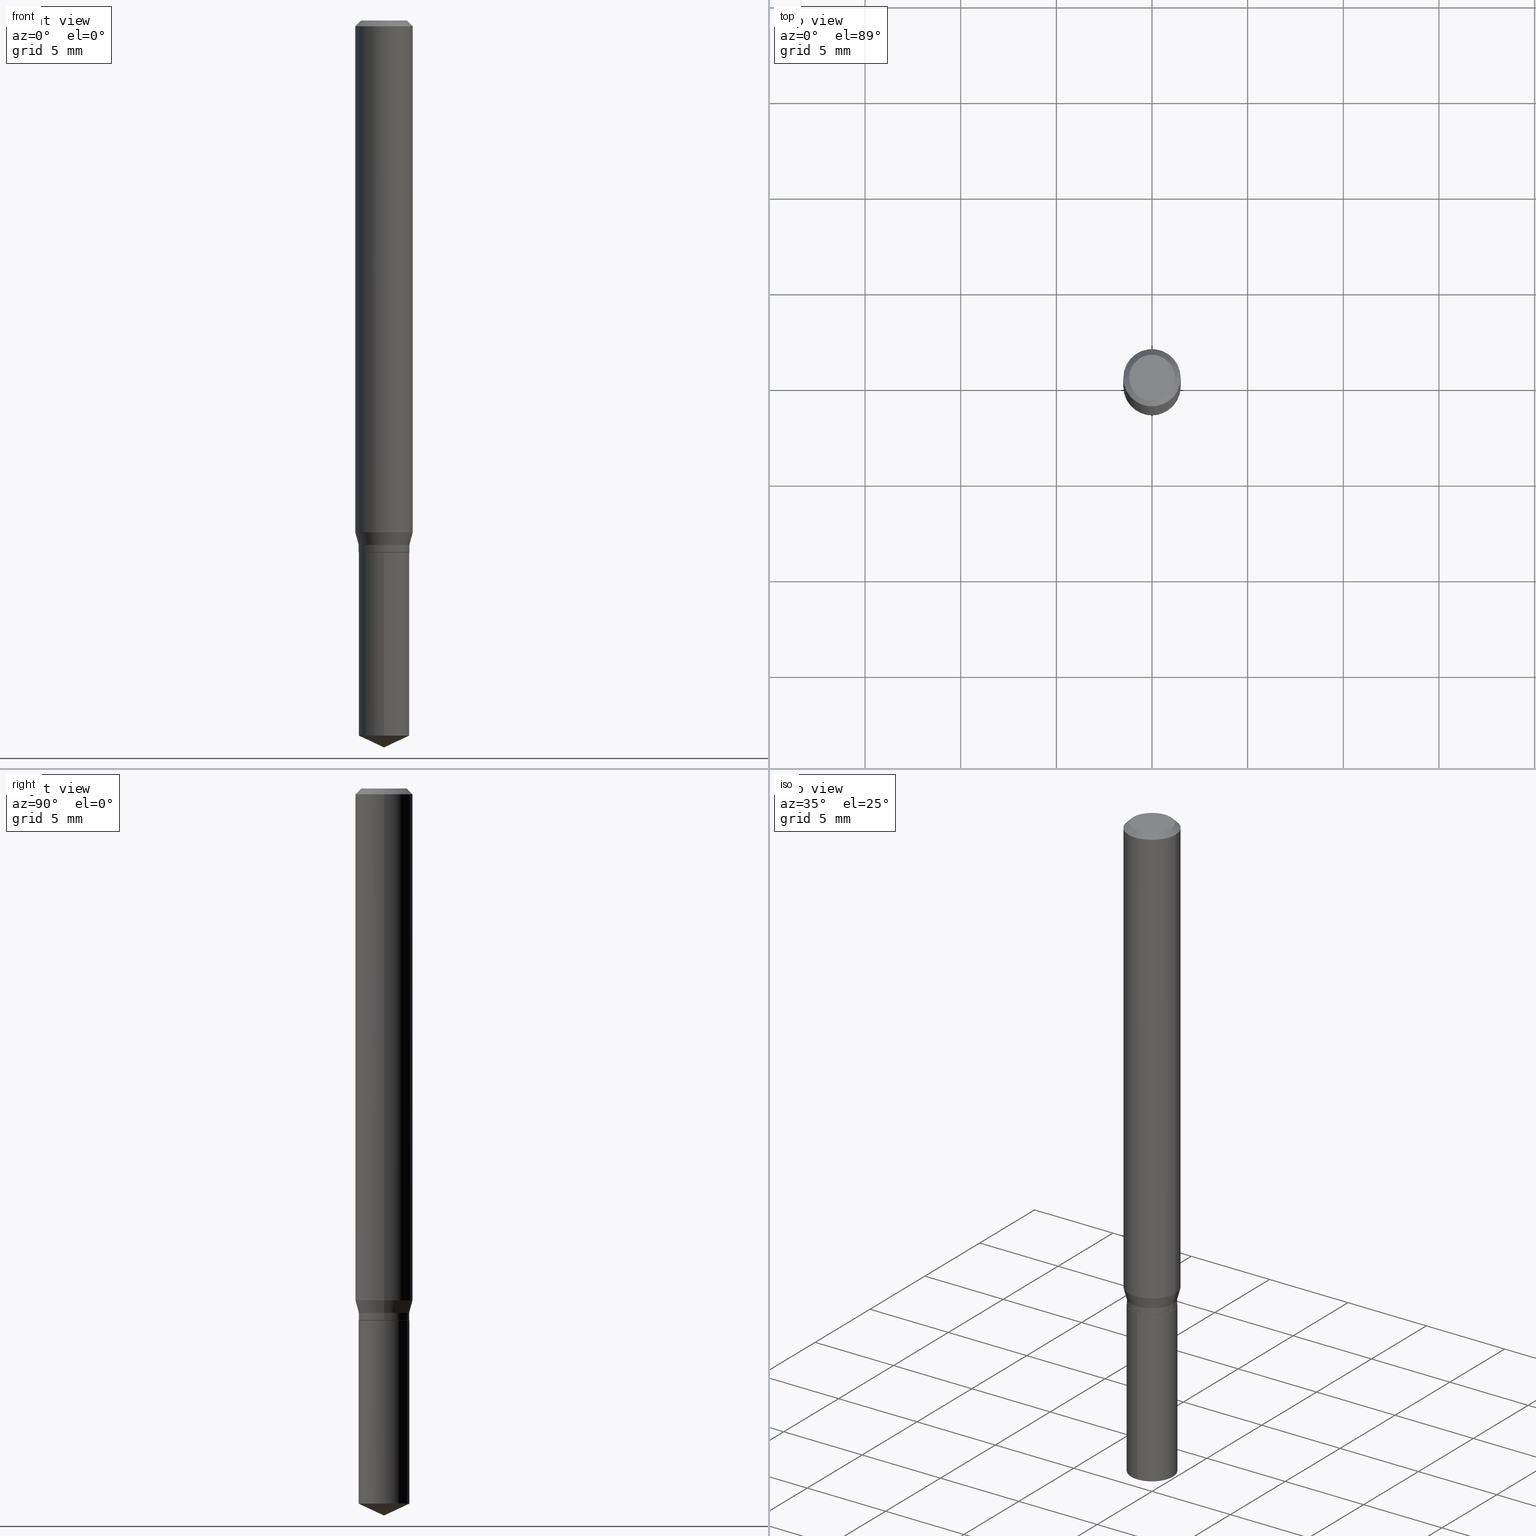
[diagram: canonical four-view strip — front | top / right | iso, engineering-drawing reading convention]
A machine part, canonical four-view strip (front | top / right | iso — engineering-drawing reading convention). The complete STEP part file that produces these views, byte-faithful:
ISO-10303-21;
HEADER;
FILE_DESCRIPTION (( 'STEP AP203' ),
    '1' );
FILE_NAME ('07678.STEP',
    '2024-04-24T00:53:07',
    ( '' ),
    ( '' ),
    'SwSTEP 2.0',
    'SolidWorks 2023',
    '' );
FILE_SCHEMA (( 'CONFIG_CONTROL_DESIGN' ));
ENDSEC;

DATA;
#1 = ORIENTED_EDGE ( 'NONE', *, *, #398, .F. ) ;
#2 = CLOSED_SHELL ( 'NONE', ( #417, #115, #282, #451, #312 ) ) ;
#3 = CARTESIAN_POINT ( 'NONE',  ( -0.05215000000000000191, -3.422771863887242530E-15, -1.093999999999999861 ) ) ;
#4 = ORIENTED_EDGE ( 'NONE', *, *, #23, .T. ) ;
#5 = VERTEX_POINT ( 'NONE', #52 ) ;
#6 = DIRECTION ( 'NONE',  ( -2.445458899330790108E-29, 3.491495526022433599E-15, 1.000000000000000000 ) ) ;
#7 = FACE_OUTER_BOUND ( 'NONE', #307, .T. ) ;
#8 = VERTEX_POINT ( 'NONE', #232 ) ;
#9 = DIRECTION ( 'NONE',  ( 1.000000000000000000, -6.982962677686265133E-15, 0.000000000000000000 ) ) ;
#10 = ORIENTED_EDGE ( 'NONE', *, *, #487, .T. ) ;
#11 = CARTESIAN_POINT ( 'NONE',  ( 2.675342873966538993E-29, -3.819680584694400481E-15, -1.093999999999999861 ) ) ;
#12 = APPROVAL ( #31, 'UNSPECIFIED' ) ;
#13 = EDGE_CURVE ( 'NONE', #5, #98, #94, .T. ) ;
#14 = DIRECTION ( 'NONE',  ( -2.445458899330790108E-29, 3.491495526022433205E-15, 1.000000000000000000 ) ) ;
#15 = AXIS2_PLACEMENT_3D ( 'NONE', #269, #86, #219 ) ;
#16 = CIRCLE ( 'NONE', #448, 0.04724000000000000421 ) ;
#17 = CARTESIAN_POINT ( 'NONE',  ( 2.888098660104664204E-31, -4.123439461173780263E-17, -0.01181000000000007218 ) ) ;
#18 = ORIENTED_EDGE ( 'NONE', *, *, #41, .T. ) ;
#19 = CARTESIAN_POINT ( 'NONE',  ( -0.05215000000000000191, -3.422771863887242530E-15, -1.078899999999999970 ) ) ;
#20 = ORIENTED_EDGE ( 'NONE', *, *, #23, .F. ) ;
#21 = CYLINDRICAL_SURFACE ( 'NONE', #473, 0.05905000000000006771 ) ;
#22 = CARTESIAN_POINT ( 'NONE',  ( 2.676565608369632355E-29, -3.821426325363822773E-15, -1.094500000000000028 ) ) ;
#23 = EDGE_CURVE ( 'NONE', #167, #478, #242, .T. ) ;
#24 = ORIENTED_EDGE ( 'NONE', *, *, #157, .F. ) ;
#25 = CARTESIAN_POINT ( 'NONE',  ( 0.05215000000000000191, -4.131120720119208550E-15, -1.078899999999999970 ) ) ;
#26 = AXIS2_PLACEMENT_3D ( 'NONE', #22, #422, #234 ) ;
#27 = VECTOR ( 'NONE', #113, 39.37007874015748143 ) ;
#28 = APPROVAL_ROLE ( '' ) ;
#29 = DIRECTION ( 'NONE',  ( -2.445468806185136597E-29, 3.491481338843145583E-15, 1.000000000000000000 ) ) ;
#30 = ORIENTED_EDGE ( 'NONE', *, *, #92, .T. ) ;
#31 = APPROVAL_STATUS ( 'not_yet_approved' ) ;
#32 = EDGE_LOOP ( 'NONE', ( #424, #137, #160, #164 ) ) ;
#33 = CALENDAR_DATE ( 2024, 23, 4 ) ;
#34 = AXIS2_PLACEMENT_3D ( 'NONE', #275, #47, #348 ) ;
#35 = LOCAL_TIME ( 20, 53, 7.000000000000000000, #79 ) ;
#36 = PERSON_AND_ORGANIZATION ( #263, #218 ) ;
#37 = EDGE_CURVE ( 'NONE', #162, #98, #377, .T. ) ;
#38 = VECTOR ( 'NONE', #244, 39.37007874015748143 ) ;
#39 = VECTOR ( 'NONE', #371, 39.37007874015748143 ) ;
#40 = DIRECTION ( 'NONE',  ( -2.445468806185136597E-29, 3.491481338843145583E-15, 1.000000000000000000 ) ) ;
#41 = EDGE_CURVE ( 'NONE', #345, #270, #55, .T. ) ;
#42 = LINE ( 'NONE', #337, #39 ) ;
#43 = ORIENTED_EDGE ( 'NONE', *, *, #301, .T. ) ;
#44 = VERTEX_POINT ( 'NONE', #449 ) ;
#45 = AXIS2_PLACEMENT_3D ( 'NONE', #319, #166, #436 ) ;
#46 = CARTESIAN_POINT ( 'NONE',  ( 2.676565608369631794E-29, -3.821426325363822773E-15, -1.094499999999999806 ) ) ;
#47 = DIRECTION ( 'NONE',  ( -2.445468806185136597E-29, 3.491481338843145583E-15, 1.000000000000000000 ) ) ;
#48 = DIRECTION ( 'NONE',  ( -0.7071067811864267805, 7.493145998869918709E-15, 0.7071067811866682540 ) ) ;
#49 = CARTESIAN_POINT ( 'NONE',  ( 0.05215000000000000191, -4.183842088335739536E-15, -1.093999999999999861 ) ) ;
#50 = ORIENTED_EDGE ( 'NONE', *, *, #70, .F. ) ;
#51 = ADVANCED_FACE ( 'NONE', ( #452 ), #408, .T. ) ;
#52 = CARTESIAN_POINT ( 'NONE',  ( -0.05164999999999999453, -3.451781775169620013E-15, -1.094500000000000028 ) ) ;
#53 = CARTESIAN_POINT ( 'NONE',  ( 3.658651059288794515E-29, -5.223626456482161457E-15, -1.496099999999999985 ) ) ;
#54 = FACE_OUTER_BOUND ( 'NONE', #389, .T. ) ;
#55 = LINE ( 'NONE', #204, #442 ) ;
#56 = AXIS2_PLACEMENT_3D ( 'NONE', #198, #136, #99 ) ;
#57 = CC_DESIGN_APPROVAL ( #397, ( #373 ) ) ;
#58 = CARTESIAN_POINT ( 'NONE',  ( 3.705480366989281044E-16, 0.05214999999999483937, -1.471782055627217201 ) ) ;
#59 = ORIENTED_EDGE ( 'NONE', *, *, #147, .F. ) ;
#60 = LINE ( 'NONE', #355, #443 ) ;
#61 = CARTESIAN_POINT ( 'NONE',  ( 3.599193368861023933E-29, -5.138704934634797986E-15, -1.471782055627216979 ) ) ;
#62 = ORIENTED_EDGE ( 'NONE', *, *, #77, .F. ) ;
#63 =( LENGTH_UNIT ( ) NAMED_UNIT ( * ) SI_UNIT ( $, .METRE. ) );
#64 = DIRECTION ( 'NONE',  ( -6.982962677686267499E-15, -1.000000000000000000, 3.520397390770433360E-15 ) ) ;
#65 = CARTESIAN_POINT ( 'NONE',  ( -3.641615036413027182E-16, -0.05215000000000512281, -1.471782055627216756 ) ) ;
#66 = AXIS2_PLACEMENT_3D ( 'NONE', #265, #455, #272 ) ;
#67 =( GEOMETRIC_REPRESENTATION_CONTEXT ( 3 ) GLOBAL_UNCERTAINTY_ASSIGNED_CONTEXT ( ( #103 ) ) GLOBAL_UNIT_ASSIGNED_CONTEXT ( ( #186, #73, #146 ) ) REPRESENTATION_CONTEXT ( 'NONE', 'WORKASPACE' ) );
#68 = DIRECTION ( 'NONE',  ( 2.438088387897960049E-29, -3.491481338843145188E-15, -1.000000000000000000 ) ) ;
#69 = DIRECTION ( 'NONE',  ( 6.982962677686265922E-15, 1.000000000000000000, -3.491495526022433599E-15 ) ) ;
#70 = EDGE_CURVE ( 'NONE', #98, #162, #485, .T. ) ;
#71 = DATE_AND_TIME ( #327, #155 ) ;
#72 = CYLINDRICAL_SURFACE ( 'NONE', #251, 0.05215000000000000191 ) ;
#73 =( NAMED_UNIT ( * ) PLANE_ANGLE_UNIT ( ) SI_UNIT ( $, .RADIAN. ) );
#74 = CARTESIAN_POINT ( 'NONE',  ( 8.265746106709734507E-48, -1.180129479067563789E-33, -3.380025165646692144E-19 ) ) ;
#75 = AXIS2_PLACEMENT_3D ( 'NONE', #11, #240, #302 ) ;
#76 = CC_DESIGN_PERSON_AND_ORGANIZATION_ASSIGNMENT ( #326, #476, ( #482 ) ) ;
#77 = EDGE_CURVE ( 'NONE', #5, #453, #372, .T. ) ;
#78 = PERSON_AND_ORGANIZATION ( #263, #218 ) ;
#79 = COORDINATED_UNIVERSAL_TIME_OFFSET ( 5, 0, .BEHIND. ) ;
#80 = DIRECTION ( 'NONE',  ( 1.000000000000000000, -6.982962677686268288E-15, 0.000000000000000000 ) ) ;
#81 = AXIS2_PLACEMENT_3D ( 'NONE', #354, #433, #310 ) ;
#82 = VECTOR ( 'NONE', #353, 39.37007874015747433 ) ;
#83 = ORIENTED_EDGE ( 'NONE', *, *, #474, .T. ) ;
#84 = ORIENTED_EDGE ( 'NONE', *, *, #467, .T. ) ;
#85 = PERSON_AND_ORGANIZATION ( #263, #218 ) ;
#86 = DIRECTION ( 'NONE',  ( -2.445468806185136597E-29, 3.491481338843145583E-15, 1.000000000000000000 ) ) ;
#87 = ORIENTED_EDGE ( 'NONE', *, *, #256, .T. ) ;
#88 = DIRECTION ( 'NONE',  ( -2.445458899330790108E-29, 3.491495526022433205E-15, 1.000000000000000000 ) ) ;
#89 = ORIENTED_EDGE ( 'NONE', *, *, #487, .F. ) ;
#90 = CIRCLE ( 'NONE', #387, 0.05215000000000000191 ) ;
#91 = CARTESIAN_POINT ( 'NONE',  ( -0.05904999999999999832, -1.439566489240130405E-15, -0.01181000000000007218 ) ) ;
#92 = EDGE_CURVE ( 'NONE', #453, #162, #42, .T. ) ;
#93 = ORIENTED_EDGE ( 'NONE', *, *, #13, .T. ) ;
#94 = LINE ( 'NONE', #380, #119 ) ;
#95 = DIRECTION ( 'NONE',  ( -2.445468806185136597E-29, 3.491481338843145583E-15, 1.000000000000000000 ) ) ;
#96 = DIRECTION ( 'NONE',  ( -2.445458899330790108E-29, 3.491495526022433205E-15, 1.000000000000000000 ) ) ;
#97 = DESIGN_CONTEXT ( 'detailed design', #445, 'design' ) ;
#98 = VERTEX_POINT ( 'NONE', #3 ) ;
#99 = DIRECTION ( 'NONE',  ( 1.000000000000000000, -6.982962677686266711E-15, 0.000000000000000000 ) ) ;
#100 = EDGE_CURVE ( 'NONE', #345, #134, #333, .T. ) ;
#101 = CIRCLE ( 'NONE', #159, 0.04724000000000000421 ) ;
#102 = FACE_OUTER_BOUND ( 'NONE', #143, .T. ) ;
#103 = UNCERTAINTY_MEASURE_WITH_UNIT (LENGTH_MEASURE( 1.000000000000000082E-05 ), #186, 'distance_accuracy_value', 'NONE');
#104 = PRODUCT ( '07678', '07678', '', ( #247 ) ) ;
#105 = CARTESIAN_POINT ( 'NONE',  ( 0.05215000000000000191, -4.131120720119208550E-15, -1.078899999999999970 ) ) ;
#106 = DIRECTION ( 'NONE',  ( 1.000000000000000000, -6.982962677686268288E-15, 0.000000000000000000 ) ) ;
#107 = PERSON_AND_ORGANIZATION ( #263, #218 ) ;
#108 = VECTOR ( 'NONE', #139, 39.37007874015748143 ) ;
#109 = ADVANCED_FACE ( 'NONE', ( #222 ), #414, .F. ) ;
#110 = LOCAL_TIME ( 20, 53, 7.000000000000000000, #291 ) ;
#111 = ADVANCED_FACE ( 'NONE', ( #158 ), #472, .T. ) ;
#112 = PERSON_AND_ORGANIZATION ( #263, #218 ) ;
#113 = DIRECTION ( 'NONE',  ( -0.7071067811865453523, 2.468850131082234184E-15, -0.7071067811865496822 ) ) ;
#114 = DATE_AND_TIME ( #406, #35 ) ;
#115 = ADVANCED_FACE ( 'NONE', ( #206 ), #294, .T. ) ;
#116 = AXIS2_PLACEMENT_3D ( 'NONE', #385, #96, #207 ) ;
#117 = CALENDAR_DATE ( 2024, 23, 4 ) ;
#118 = DIRECTION ( 'NONE',  ( 1.000000000000000000, -6.982962677686265922E-15, 4.876176775795935793E-29 ) ) ;
#119 = VECTOR ( 'NONE', #48, 39.37007874015748143 ) ;
#120 = ORIENTED_EDGE ( 'NONE', *, *, #100, .T. ) ;
#121 = ORIENTED_EDGE ( 'NONE', *, *, #184, .T. ) ;
#122 = DIRECTION ( 'NONE',  ( -6.328713451373382000E-15, -0.9063077870366501587, 0.4226182617406989972 ) ) ;
#123 = ORIENTED_EDGE ( 'NONE', *, *, #297, .T. ) ;
#124 = ORIENTED_EDGE ( 'NONE', *, *, #346, .F. ) ;
#125 = ORIENTED_EDGE ( 'NONE', *, *, #92, .F. ) ;
#126 = CC_DESIGN_PERSON_AND_ORGANIZATION_ASSIGNMENT ( #153, #258, ( #276 ) ) ;
#127 = ADVANCED_FACE ( 'NONE', ( #102 ), #255, .T. ) ;
#128 = CARTESIAN_POINT ( 'NONE',  ( 3.705480366989282030E-16, 0.05214999999999617164, -1.094500000000000028 ) ) ;
#129 = LINE ( 'NONE', #378, #38 ) ;
#130 = EDGE_LOOP ( 'NONE', ( #403, #293 ) ) ;
#131 = CIRCLE ( 'NONE', #116, 0.05215000000000000191 ) ;
#132 = LOCAL_TIME ( 20, 53, 7.000000000000000000, #214 ) ;
#133 = DIRECTION ( 'NONE',  ( 2.445468806185136597E-29, -3.491481338843145583E-15, -1.000000000000000000 ) ) ;
#134 = VERTEX_POINT ( 'NONE', #58 ) ;
#135 = CARTESIAN_POINT ( 'NONE',  ( 2.676565608369631794E-29, -3.821426325363822773E-15, -1.094499999999999806 ) ) ;
#136 = DIRECTION ( 'NONE',  ( -2.445468806185136597E-29, 3.491481338843145583E-15, 1.000000000000000000 ) ) ;
#137 = ORIENTED_EDGE ( 'NONE', *, *, #297, .F. ) ;
#138 = DIRECTION ( 'NONE',  ( 1.000000000000000000, -6.982962677686265133E-15, 0.000000000000000000 ) ) ;
#139 = DIRECTION ( 'NONE',  ( -2.445468806185136877E-29, 3.491481338843145188E-15, 1.000000000000000000 ) ) ;
#140 = LINE ( 'NONE', #287, #367 ) ;
#141 = VECTOR ( 'NONE', #386, 39.37007874015748143 ) ;
#142 = CARTESIAN_POINT ( 'NONE',  ( 0.000000000000000000, 0.000000000000000000, 0.000000000000000000 ) ) ;
#143 = EDGE_LOOP ( 'NONE', ( #283, #464, #213, #226 ) ) ;
#144 = CARTESIAN_POINT ( 'NONE',  ( 4.132873053354867254E-48, -5.900647395337818946E-34, -1.690012582823346072E-19 ) ) ;
#145 = ADVANCED_FACE ( 'NONE', ( #237 ), #411, .T. ) ;
#146 =( NAMED_UNIT ( * ) SI_UNIT ( $, .STERADIAN. ) SOLID_ANGLE_UNIT ( ) );
#147 = EDGE_CURVE ( 'NONE', #175, #228, #399, .T. ) ;
#148 = CARTESIAN_POINT ( 'NONE',  ( 2.676565608369631794E-29, -3.821426325363822773E-15, -1.094499999999999806 ) ) ;
#149 = CALENDAR_DATE ( 2024, 23, 4 ) ;
#150 = AXIS2_PLACEMENT_3D ( 'NONE', #148, #325, #69 ) ;
#151 = PERSON_AND_ORGANIZATION_ROLE ( 'design_owner' ) ;
#152 = DIRECTION ( 'NONE',  ( -2.445468806185136597E-29, 3.491481338843145583E-15, 1.000000000000000000 ) ) ;
#153 = PERSON_AND_ORGANIZATION ( #263, #218 ) ;
#154 = VECTOR ( 'NONE', #300, 39.37007874015748854 ) ;
#155 = LOCAL_TIME ( 20, 53, 7.000000000000000000, #185 ) ;
#156 = DATE_AND_TIME ( #117, #335 ) ;
#157 = EDGE_CURVE ( 'NONE', #199, #228, #129, .T. ) ;
#158 = FACE_OUTER_BOUND ( 'NONE', #246, .T. ) ;
#159 = AXIS2_PLACEMENT_3D ( 'NONE', #462, #174, #471 ) ;
#160 = ORIENTED_EDGE ( 'NONE', *, *, #313, .T. ) ;
#161 = ORIENTED_EDGE ( 'NONE', *, *, #37, .T. ) ;
#162 = VERTEX_POINT ( 'NONE', #49 ) ;
#163 = ADVANCED_FACE ( 'NONE', ( #54 ), #446, .T. ) ;
#164 = ORIENTED_EDGE ( 'NONE', *, *, #147, .T. ) ;
#165 = CYLINDRICAL_SURFACE ( 'NONE', #205, 0.05215000000000000191 ) ;
#166 = DIRECTION ( 'NONE',  ( -2.445468806185136597E-29, 3.491481338843145583E-15, 1.000000000000000000 ) ) ;
#167 = VERTEX_POINT ( 'NONE', #19 ) ;
#168 = CARTESIAN_POINT ( 'NONE',  ( 2.638416294993144011E-29, -3.766959216477869495E-15, -1.078899999999999970 ) ) ;
#169 = DIRECTION ( 'NONE',  ( -6.982962677686266711E-15, -1.000000000000000000, 2.619221470435534958E-15 ) ) ;
#170 = DIRECTION ( 'NONE',  ( -2.445458899330790108E-29, 3.491495526022433205E-15, 1.000000000000000000 ) ) ;
#171 = EDGE_LOOP ( 'NONE', ( #267, #120, #305 ) ) ;
#172 = AXIS2_PLACEMENT_3D ( 'NONE', #341, #40, #80 ) ;
#173 = CARTESIAN_POINT ( 'NONE',  ( 2.575442659545389691E-29, -3.677049554801204039E-15, -1.053148849427774314 ) ) ;
#174 = DIRECTION ( 'NONE',  ( -2.445468806185136597E-29, 3.491481338843145583E-15, 1.000000000000000000 ) ) ;
#175 = VERTEX_POINT ( 'NONE', #91 ) ;
#176 = CARTESIAN_POINT ( 'NONE',  ( 2.676565608369631794E-29, -3.821426325363822773E-15, -1.094499999999999806 ) ) ;
#177 = CARTESIAN_POINT ( 'NONE',  ( 2.575442659545389691E-29, -3.677049554801204039E-15, -1.053148849427774314 ) ) ;
#178 = ORIENTED_EDGE ( 'NONE', *, *, #438, .F. ) ;
#179 = DIRECTION ( 'NONE',  ( 1.000000000000000000, 0.000000000000000000, 0.000000000000000000 ) ) ;
#180 = CYLINDRICAL_SURFACE ( 'NONE', #352, 0.05905000000000006771 ) ;
#181 = APPLICATION_CONTEXT ( 'configuration controlled 3d designs of mechanical parts and assemblies' ) ;
#182 = ORIENTED_EDGE ( 'NONE', *, *, #37, .F. ) ;
#183 = CC_DESIGN_PERSON_AND_ORGANIZATION_ASSIGNMENT ( #296, #151, ( #104 ) ) ;
#184 = EDGE_CURVE ( 'NONE', #199, #44, #365, .T. ) ;
#185 = COORDINATED_UNIVERSAL_TIME_OFFSET ( 5, 0, .BEHIND. ) ;
#186 =( CONVERSION_BASED_UNIT ( 'INCH', #394 ) LENGTH_UNIT ( ) NAMED_UNIT ( #383 ) );
#187 = DATE_AND_TIME ( #33, #132 ) ;
#188 = LINE ( 'NONE', #25, #223 ) ;
#189 = CIRCLE ( 'NONE', #211, 0.05905000000000013016 ) ;
#190 = CARTESIAN_POINT ( 'NONE',  ( 0.000000000000000000, 0.000000000000000000, 0.000000000000000000 ) ) ;
#191 = ADVANCED_FACE ( 'NONE', ( #7 ), #315, .T. ) ;
#192 = ORIENTED_EDGE ( 'NONE', *, *, #374, .T. ) ;
#193 = ADVANCED_FACE ( 'NONE', ( #427 ), #334, .T. ) ;
#194 = CLOSED_SHELL ( 'NONE', ( #163, #127, #268, #191, #292, #51, #111, #420, #145, #483, #109, #193 ) ) ;
#195 = AXIS2_PLACEMENT_3D ( 'NONE', #216, #405, #64 ) ;
#196 = DIRECTION ( 'NONE',  ( 2.445468806185136597E-29, -3.491481338843145583E-15, -1.000000000000000000 ) ) ;
#197 = DIRECTION ( 'NONE',  ( -2.445458899330790108E-29, 3.491495526022433205E-15, 1.000000000000000000 ) ) ;
#198 = CARTESIAN_POINT ( 'NONE',  ( 2.888098660104664204E-31, -4.123439461173780263E-17, -0.01181000000000007218 ) ) ;
#199 = VERTEX_POINT ( 'NONE', #382 ) ;
#200 = DIRECTION ( 'NONE',  ( 1.000000000000000000, -6.982962677686268288E-15, 0.000000000000000000 ) ) ;
#201 = FACE_OUTER_BOUND ( 'NONE', #425, .T. ) ;
#202 = DIRECTION ( 'NONE',  ( 1.000000000000000000, -6.982962677686268288E-15, 0.000000000000000000 ) ) ;
#203 = AXIS2_PLACEMENT_3D ( 'NONE', #393, #321, #202 ) ;
#204 = CARTESIAN_POINT ( 'NONE',  ( 3.658651059288795076E-29, -5.223626456482161457E-15, -1.496099999999999985 ) ) ;
#205 = AXIS2_PLACEMENT_3D ( 'NONE', #176, #197, #432 ) ;
#206 = FACE_OUTER_BOUND ( 'NONE', #171, .T. ) ;
#207 = DIRECTION ( 'NONE',  ( -6.982962677686266711E-15, -1.000000000000000000, 2.619221470435534958E-15 ) ) ;
#208 = FACE_OUTER_BOUND ( 'NONE', #490, .T. ) ;
#209 = EDGE_CURVE ( 'NONE', #98, #167, #466, .T. ) ;
#210 = AXIS2_PLACEMENT_3D ( 'NONE', #17, #196, #343 ) ;
#211 = AXIS2_PLACEMENT_3D ( 'NONE', #173, #95, #138 ) ;
#212 = DIRECTION ( 'NONE',  ( -1.000000000000000000, 6.982962677686265922E-15, -4.876176775795935793E-29 ) ) ;
#213 = ORIENTED_EDGE ( 'NONE', *, *, #215, .T. ) ;
#214 = COORDINATED_UNIVERSAL_TIME_OFFSET ( 5, 0, .BEHIND. ) ;
#215 = EDGE_CURVE ( 'NONE', #228, #175, #264, .T. ) ;
#216 = CARTESIAN_POINT ( 'NONE',  ( -9.261924752013118283E-28, 1.322368428517963298E-13, 37.87397874015748300 ) ) ;
#217 = CC_DESIGN_DATE_AND_TIME_ASSIGNMENT ( #114, #331, ( #373 ) ) ;
#218 = ORGANIZATION ( 'UNSPECIFIED', 'UNSPECIFIED', '' ) ;
#219 = DIRECTION ( 'NONE',  ( 1.000000000000000000, -6.982962677686269077E-15, 0.000000000000000000 ) ) ;
#220 = EDGE_CURVE ( 'NONE', #231, #419, #131, .T. ) ;
#221 = AXIS2_PLACEMENT_3D ( 'NONE', #190, #262, #224 ) ;
#222 = FACE_OUTER_BOUND ( 'NONE', #415, .T. ) ;
#223 = VECTOR ( 'NONE', #364, 39.37007874015747433 ) ;
#224 = DIRECTION ( 'NONE',  ( 1.000000000000000000, -6.982962677686266711E-15, 4.876176775795935793E-29 ) ) ;
#225 = VERTEX_POINT ( 'NONE', #351 ) ;
#226 = ORIENTED_EDGE ( 'NONE', *, *, #313, .F. ) ;
#227 = CARTESIAN_POINT ( 'NONE',  ( 6.553544099415745131E-30, -6.715915801709937704E-15, -1.094500000000000028 ) ) ;
#228 = VERTEX_POINT ( 'NONE', #241 ) ;
#229 = DIRECTION ( 'NONE',  ( 1.000000000000000000, -6.982962677686266711E-15, 4.876176775795936353E-29 ) ) ;
#230 = AXIS2_PLACEMENT_3D ( 'NONE', #177, #431, #9 ) ;
#231 = VERTEX_POINT ( 'NONE', #323 ) ;
#232 = CARTESIAN_POINT ( 'NONE',  ( 0.04724000000000000421, -3.852183633974369345E-16, -3.380025165621689721E-19 ) ) ;
#233 = FACE_OUTER_BOUND ( 'NONE', #375, .T. ) ;
#234 = DIRECTION ( 'NONE',  ( 1.000000000000000000, -6.982962677686269077E-15, 0.000000000000000000 ) ) ;
#235 = DIRECTION ( 'NONE',  ( -2.445468806185136597E-29, 3.491481338843145583E-15, 1.000000000000000000 ) ) ;
#236 = FACE_OUTER_BOUND ( 'NONE', #361, .T. ) ;
#237 = FACE_OUTER_BOUND ( 'NONE', #32, .T. ) ;
#238 = ORIENTED_EDGE ( 'NONE', *, *, #328, .F. ) ;
#239 = EDGE_CURVE ( 'NONE', #134, #270, #90, .T. ) ;
#240 = DIRECTION ( 'NONE',  ( -2.445468806185136597E-29, 3.491481338843145583E-15, 1.000000000000000000 ) ) ;
#241 = CARTESIAN_POINT ( 'NONE',  ( 0.05904999999999999832, -4.535783407291118600E-16, -0.01181000000000007218 ) ) ;
#242 = CIRCLE ( 'NONE', #286, 0.05215000000000000191 ) ;
#243 = CC_DESIGN_SECURITY_CLASSIFICATION ( #373, ( #276 ) ) ;
#244 = DIRECTION ( 'NONE',  ( -2.445468806185136877E-29, 3.491481338843145188E-15, 1.000000000000000000 ) ) ;
#245 = LINE ( 'NONE', #250, #303 ) ;
#246 = EDGE_LOOP ( 'NONE', ( #349, #4, #43, #1 ) ) ;
#247 = MECHANICAL_CONTEXT ( 'NONE', #181, 'mechanical' ) ;
#248 = EDGE_LOOP ( 'NONE', ( #418, #322, #30, #50 ) ) ;
#249 = AXIS2_PLACEMENT_3D ( 'NONE', #284, #133, #459 ) ;
#250 = CARTESIAN_POINT ( 'NONE',  ( -0.05905000000000006771, 4.195754854663396409E-16, -2.904631170795525045E-30 ) ) ;
#251 = AXIS2_PLACEMENT_3D ( 'NONE', #477, #360, #402 ) ;
#252 = APPROVAL_STATUS ( 'not_yet_approved' ) ;
#253 = FACE_OUTER_BOUND ( 'NONE', #273, .T. ) ;
#254 = DIRECTION ( 'NONE',  ( 0.000000000000000000, 0.000000000000000000, 1.000000000000000000 ) ) ;
#255 = CONICAL_SURFACE ( 'NONE', #249, 0.05904999999999999832, 0.7853981633974452814 ) ;
#256 = EDGE_CURVE ( 'NONE', #8, #225, #101, .T. ) ;
#257 = CIRCLE ( 'NONE', #324, 0.05215000000000000191 ) ;
#258 = PERSON_AND_ORGANIZATION_ROLE ( 'design_supplier' ) ;
#259 = APPROVAL ( #252, 'UNSPECIFIED' ) ;
#260 = EDGE_CURVE ( 'NONE', #8, #228, #285, .T. ) ;
#261 = PERSON_AND_ORGANIZATION_ROLE ( 'creator' ) ;
#262 = DIRECTION ( 'NONE',  ( -2.445468806185136597E-29, 3.491481338843145583E-15, 1.000000000000000000 ) ) ;
#263 = PERSON ( 'UNSPECIFIED', 'UNSPECIFIED', 'UNSPECIFIED', ('UNSPECIFIED'), ('UNSPECIFIED'), ('UNSPECIFIED') ) ;
#264 = CIRCLE ( 'NONE', #56, 0.05904999999999999832 ) ;
#265 = CARTESIAN_POINT ( 'NONE',  ( 2.638416294993144011E-29, -3.766959216477869495E-15, -1.078899999999999970 ) ) ;
#266 = CC_DESIGN_APPROVAL ( #259, ( #276 ) ) ;
#267 = ORIENTED_EDGE ( 'NONE', *, *, #41, .F. ) ;
#268 = ADVANCED_FACE ( 'NONE', ( #356 ), #180, .T. ) ;
#269 = CARTESIAN_POINT ( 'NONE',  ( 2.676565608369632355E-29, -3.821426325363822773E-15, -1.094500000000000028 ) ) ;
#270 = VERTEX_POINT ( 'NONE', #65 ) ;
#271 = ORIENTED_EDGE ( 'NONE', *, *, #398, .T. ) ;
#272 = DIRECTION ( 'NONE',  ( 1.000000000000000000, -6.982962677686268288E-15, 0.000000000000000000 ) ) ;
#273 = EDGE_LOOP ( 'NONE', ( #416, #18, #317 ) ) ;
#274 = DIRECTION ( 'NONE',  ( -2.445468806185136597E-29, 3.491481338843145583E-15, 1.000000000000000000 ) ) ;
#275 = CARTESIAN_POINT ( 'NONE',  ( 2.676565608369632355E-29, -3.821426325363822773E-15, -1.094500000000000028 ) ) ;
#276 = PRODUCT_DEFINITION_FORMATION_WITH_SPECIFIED_SOURCE ( 'ANY', '', #104, .NOT_KNOWN. ) ;
#277 = MANIFOLD_SOLID_BREP ( 'Body-Move/Copy2[1]', #2 ) ;
#278 = ORIENTED_EDGE ( 'NONE', *, *, #209, .F. ) ;
#279 = CARTESIAN_POINT ( 'NONE',  ( 2.676565608369632355E-29, -3.821426325363822773E-15, -1.094500000000000028 ) ) ;
#280 = CARTESIAN_POINT ( 'NONE',  ( 0.05904999999999999832, -4.463468013801466955E-16, -0.01181000000000007218 ) ) ;
#281 = MANIFOLD_SOLID_BREP ( 'Body-Move/Copy2[2]', #194 ) ;
#282 = ADVANCED_FACE ( 'NONE', ( #253 ), #358, .T. ) ;
#283 = ORIENTED_EDGE ( 'NONE', *, *, #256, .F. ) ;
#284 = CARTESIAN_POINT ( 'NONE',  ( 2.888098660104664204E-31, -4.123439461173780263E-17, -0.01181000000000007218 ) ) ;
#285 = LINE ( 'NONE', #280, #141 ) ;
#286 = AXIS2_PLACEMENT_3D ( 'NONE', #168, #235, #200 ) ;
#287 = CARTESIAN_POINT ( 'NONE',  ( 0.05215000000000000191, -3.641615036413388086E-16, 2.542926188577580569E-30 ) ) ;
#288 = DIRECTION ( 'NONE',  ( -2.445468806185136597E-29, 3.491481338843145583E-15, 1.000000000000000000 ) ) ;
#289 = DIRECTION ( 'NONE',  ( -2.445468806185136877E-29, 3.491481338843145188E-15, 1.000000000000000000 ) ) ;
#290 = ORIENTED_EDGE ( 'NONE', *, *, #220, .F. ) ;
#291 = COORDINATED_UNIVERSAL_TIME_OFFSET ( 5, 0, .BEHIND. ) ;
#292 = ADVANCED_FACE ( 'NONE', ( #208 ), #72, .T. ) ;
#293 = ORIENTED_EDGE ( 'NONE', *, *, #346, .T. ) ;
#294 = CONICAL_SURFACE ( 'NONE', #81, 84.42940631927483253, 1.134464013796318227 ) ;
#295 = CIRCLE ( 'NONE', #407, 0.05215000000000000191 ) ;
#296 = PERSON_AND_ORGANIZATION ( #263, #218 ) ;
#297 = EDGE_CURVE ( 'NONE', #225, #8, #16, .T. ) ;
#298 = AXIS2_PLACEMENT_3D ( 'NONE', #401, #254, #179 ) ;
#299 = SHAPE_DEFINITION_REPRESENTATION ( #392, #369 ) ;
#300 = DIRECTION ( 'NONE',  ( 6.439704144417036664E-15, 0.9063077870366530453, 0.4226182617406927244 ) ) ;
#301 = EDGE_CURVE ( 'NONE', #478, #199, #188, .T. ) ;
#302 = DIRECTION ( 'NONE',  ( 1.000000000000000000, -6.982962677686268288E-15, 0.000000000000000000 ) ) ;
#303 = VECTOR ( 'NONE', #289, 39.37007874015748143 ) ;
#304 = ORIENTED_EDGE ( 'NONE', *, *, #209, .T. ) ;
#305 = ORIENTED_EDGE ( 'NONE', *, *, #467, .F. ) ;
#306 = DIRECTION ( 'NONE',  ( 1.000000000000000000, -6.982962677686266711E-15, 4.876176775795936353E-29 ) ) ;
#307 = EDGE_LOOP ( 'NONE', ( #410, #311, #456, #428 ) ) ;
#308 = ORIENTED_EDGE ( 'NONE', *, *, #70, .T. ) ;
#309 = DIRECTION ( 'NONE',  ( -6.982962677686266711E-15, -1.000000000000000000, 2.619221470435534958E-15 ) ) ;
#310 = DIRECTION ( 'NONE',  ( -6.982962677686267499E-15, -1.000000000000000000, 3.520397390770433360E-15 ) ) ;
#311 = ORIENTED_EDGE ( 'NONE', *, *, #362, .T. ) ;
#312 = ADVANCED_FACE ( 'NONE', ( #363 ), #368, .F. ) ;
#313 = EDGE_CURVE ( 'NONE', #225, #175, #481, .T. ) ;
#314 = DIRECTION ( 'NONE',  ( -6.982962677686266711E-15, -1.000000000000000000, 5.238442940871069917E-15 ) ) ;
#315 = CONICAL_SURFACE ( 'NONE', #203, 0.05215000000000000191, 0.2617993877991501295 ) ;
#316 = APPROVAL_PERSON_ORGANIZATION ( #112, #259, #404 ) ;
#317 = ORIENTED_EDGE ( 'NONE', *, *, #239, .F. ) ;
#318 = AXIS2_PLACEMENT_3D ( 'NONE', #144, #68, #212 ) ;
#319 = CARTESIAN_POINT ( 'NONE',  ( 2.888098660104664204E-31, -4.123439461173780263E-17, -0.01181000000000007218 ) ) ;
#320 = DIRECTION ( 'NONE',  ( -2.445458899330790108E-29, 3.491495526022433599E-15, 1.000000000000000000 ) ) ;
#321 = DIRECTION ( 'NONE',  ( -2.445468806185136597E-29, 3.491481338843145583E-15, 1.000000000000000000 ) ) ;
#322 = ORIENTED_EDGE ( 'NONE', *, *, #77, .T. ) ;
#323 = CARTESIAN_POINT ( 'NONE',  ( -3.641615036413120366E-16, -0.05215000000000382524, -1.094499999999999806 ) ) ;
#324 = AXIS2_PLACEMENT_3D ( 'NONE', #461, #426, #396 ) ;
#325 = DIRECTION ( 'NONE',  ( 2.445458899330789267E-29, -3.491495526022433599E-15, -1.000000000000000000 ) ) ;
#326 = PERSON_AND_ORGANIZATION ( #263, #218 ) ;
#327 = CALENDAR_DATE ( 2024, 23, 4 ) ;
#328 = EDGE_CURVE ( 'NONE', #478, #167, #295, .T. ) ;
#329 = APPROVAL_DATE_TIME ( #187, #259 ) ;
#330 = APPROVAL_PERSON_ORGANIZATION ( #78, #397, #332 ) ;
#331 = DATE_TIME_ROLE ( 'classification_date' ) ;
#332 = APPROVAL_ROLE ( '' ) ;
#333 = LINE ( 'NONE', #376, #154 ) ;
#334 = CONICAL_SURFACE ( 'NONE', #26, 0.05164999999999999453, 0.7853981633972775267 ) ;
#335 = LOCAL_TIME ( 20, 53, 7.000000000000000000, #488 ) ;
#336 = SECURITY_CLASSIFICATION_LEVEL ( 'unclassified' ) ;
#337 = CARTESIAN_POINT ( 'NONE',  ( 0.05164999999999999453, -4.182096347666318821E-15, -1.094500000000000028 ) ) ;
#338 = CC_DESIGN_DATE_AND_TIME_ASSIGNMENT ( #441, #444, ( #482 ) ) ;
#339 = ORIENTED_EDGE ( 'NONE', *, *, #409, .F. ) ;
#340 = AXIS2_PLACEMENT_3D ( 'NONE', #227, #489, #118 ) ;
#341 = CARTESIAN_POINT ( 'NONE',  ( 2.675342873966538993E-29, -3.819680584694400481E-15, -1.093999999999999861 ) ) ;
#342 = DIRECTION ( 'NONE',  ( -2.445468806185136597E-29, 3.491481338843145583E-15, 1.000000000000000000 ) ) ;
#343 = DIRECTION ( 'NONE',  ( -1.000000000000000000, 6.982962677686266711E-15, 0.000000000000000000 ) ) ;
#344 = PRODUCT_RELATED_PRODUCT_CATEGORY ( 'detail', '', ( #104 ) ) ;
#345 = VERTEX_POINT ( 'NONE', #53 ) ;
#346 = EDGE_CURVE ( 'NONE', #419, #231, #400, .T. ) ;
#347 = CARTESIAN_POINT ( 'NONE',  ( 3.705480366989189339E-16, 0.05214999999999617164, -1.094500000000000028 ) ) ;
#348 = DIRECTION ( 'NONE',  ( 1.000000000000000000, -6.982962677686269077E-15, 0.000000000000000000 ) ) ;
#349 = ORIENTED_EDGE ( 'NONE', *, *, #362, .F. ) ;
#350 = CARTESIAN_POINT ( 'NONE',  ( 0.000000000000000000, 0.000000000000000000, 0.000000000000000000 ) ) ;
#351 = CARTESIAN_POINT ( 'NONE',  ( -0.04724000000000000421, 3.504923541997677355E-16, -3.380025165670481712E-19 ) ) ;
#352 = AXIS2_PLACEMENT_3D ( 'NONE', #142, #288, #229 ) ;
#353 = DIRECTION ( 'NONE',  ( -0.2588190451025214611, 5.211531920934551042E-15, 0.9659258262890682012 ) ) ;
#354 = CARTESIAN_POINT ( 'NONE',  ( -9.261924752013118283E-28, 1.322368428517963298E-13, 37.87397874015748300 ) ) ;
#355 = CARTESIAN_POINT ( 'NONE',  ( -3.641615036413120366E-16, -0.05215000000000382524, -1.094499999999999806 ) ) ;
#356 = FACE_OUTER_BOUND ( 'NONE', #458, .T. ) ;
#357 = DIRECTION ( 'NONE',  ( 1.000000000000000000, -6.982962677686266711E-15, 4.876185090822587894E-29 ) ) ;
#358 = CONICAL_SURFACE ( 'NONE', #195, 84.42940631927483253, 1.134464013796318227 ) ;
#359 = APPLICATION_PROTOCOL_DEFINITION ( 'international standard', 'config_control_design', 1994, #445 ) ;
#360 = DIRECTION ( 'NONE',  ( -2.445468806185136597E-29, 3.491481338843145583E-15, 1.000000000000000000 ) ) ;
#361 = EDGE_LOOP ( 'NONE', ( #89, #271, #429, #59 ) ) ;
#362 = EDGE_CURVE ( 'NONE', #167, #44, #430, .T. ) ;
#363 = FACE_OUTER_BOUND ( 'NONE', #130, .T. ) ;
#364 = DIRECTION ( 'NONE',  ( 0.2588190451025214611, 1.565188264969621573E-15, 0.9659258262890682012 ) ) ;
#365 = CIRCLE ( 'NONE', #230, 0.05905000000000013016 ) ;
#366 = PLANE ( 'NONE',  #318 ) ;
#367 = VECTOR ( 'NONE', #435, 39.37007874015748143 ) ;
#368 = PLANE ( 'NONE',  #150 ) ;
#369 = ADVANCED_BREP_SHAPE_REPRESENTATION ( '07678', ( #277, #281, #298 ), #67 ) ;
#370 = ORIENTED_EDGE ( 'NONE', *, *, #438, .T. ) ;
#371 = DIRECTION ( 'NONE',  ( 0.7071067811864267805, -2.468850131080992517E-15, 0.7071067811866682540 ) ) ;
#372 = CIRCLE ( 'NONE', #15, 0.05164999999999999453 ) ;
#373 = SECURITY_CLASSIFICATION ( '', '', #336 ) ;
#374 = EDGE_CURVE ( 'NONE', #453, #5, #480, .T. ) ;
#375 = EDGE_LOOP ( 'NONE', ( #178, #379, #395, #124 ) ) ;
#376 = CARTESIAN_POINT ( 'NONE',  ( 3.658672935554494692E-29, -5.223595400746700193E-15, -1.496099999999999985 ) ) ;
#377 = CIRCLE ( 'NONE', #75, 0.05215000000000000191 ) ;
#378 = CARTESIAN_POINT ( 'NONE',  ( 0.05905000000000006771, -4.123439461173745257E-16, 2.879382386107503723E-30 ) ) ;
#379 = ORIENTED_EDGE ( 'NONE', *, *, #239, .T. ) ;
#380 = CARTESIAN_POINT ( 'NONE',  ( -0.05164999999999999453, -3.454431002343731609E-15, -1.094500000000000028 ) ) ;
#381 = CYLINDRICAL_SURFACE ( 'NONE', #486, 0.05215000000000000191 ) ;
#382 = CARTESIAN_POINT ( 'NONE',  ( 0.05905000000000013016, -4.089393500918578959E-15, -1.053148849427774314 ) ) ;
#383 = DIMENSIONAL_EXPONENTS ( 1.000000000000000000, 0.000000000000000000, 0.000000000000000000, 0.000000000000000000, 0.000000000000000000, 0.000000000000000000, 0.000000000000000000 ) ;
#384 = EDGE_LOOP ( 'NONE', ( #278, #308, #83, #20 ) ) ;
#385 = CARTESIAN_POINT ( 'NONE',  ( 2.676565608369631794E-29, -3.821426325363822773E-15, -1.094499999999999806 ) ) ;
#386 = DIRECTION ( 'NONE',  ( 0.7071067811865453523, -7.319954787623248157E-15, -0.7071067811865496822 ) ) ;
#387 = AXIS2_PLACEMENT_3D ( 'NONE', #61, #170, #314 ) ;
#388 = AXIS2_PLACEMENT_3D ( 'NONE', #279, #342, #391 ) ;
#389 = EDGE_LOOP ( 'NONE', ( #192, #93, #182, #125 ) ) ;
#390 = CC_DESIGN_PERSON_AND_ORGANIZATION_ASSIGNMENT ( #36, #261, ( #276 ) ) ;
#391 = DIRECTION ( 'NONE',  ( 1.000000000000000000, -6.982962677686269077E-15, 0.000000000000000000 ) ) ;
#392 = PRODUCT_DEFINITION_SHAPE ( 'NONE', 'NONE',  #482 ) ;
#393 = CARTESIAN_POINT ( 'NONE',  ( 2.638416294993144011E-29, -3.766959216477869495E-15, -1.078899999999999970 ) ) ;
#394 = LENGTH_MEASURE_WITH_UNIT ( LENGTH_MEASURE( 0.02539999999999999897 ), #63 );
#395 = ORIENTED_EDGE ( 'NONE', *, *, #409, .T. ) ;
#396 = DIRECTION ( 'NONE',  ( -6.982962677686266711E-15, -1.000000000000000000, 5.238442940871069917E-15 ) ) ;
#397 = APPROVAL ( #450, 'UNSPECIFIED' ) ;
#398 = EDGE_CURVE ( 'NONE', #44, #199, #189, .T. ) ;
#399 = CIRCLE ( 'NONE', #45, 0.05904999999999999832 ) ;
#400 = CIRCLE ( 'NONE', #463, 0.05215000000000000191 ) ;
#401 = CARTESIAN_POINT ( 'NONE',  ( 0.000000000000000000, 0.000000000000000000, 0.000000000000000000 ) ) ;
#402 = DIRECTION ( 'NONE',  ( 1.000000000000000000, -6.982962677686266711E-15, 4.876176775795935793E-29 ) ) ;
#403 = ORIENTED_EDGE ( 'NONE', *, *, #220, .T. ) ;
#404 = APPROVAL_ROLE ( '' ) ;
#405 = DIRECTION ( 'NONE',  ( -2.445458899330790108E-29, 3.491495526022433205E-15, 1.000000000000000000 ) ) ;
#406 = CALENDAR_DATE ( 2024, 23, 4 ) ;
#407 = AXIS2_PLACEMENT_3D ( 'NONE', #439, #152, #106 ) ;
#408 = CYLINDRICAL_SURFACE ( 'NONE', #221, 0.05215000000000000191 ) ;
#409 = EDGE_CURVE ( 'NONE', #270, #231, #60, .T. ) ;
#410 = ORIENTED_EDGE ( 'NONE', *, *, #328, .T. ) ;
#411 = CONICAL_SURFACE ( 'NONE', #210, 0.05904999999999999832, 0.7853981633974452814 ) ;
#412 = VECTOR ( 'NONE', #320, 39.37007874015748143 ) ;
#413 = ORIENTED_EDGE ( 'NONE', *, *, #374, .F. ) ;
#414 = PLANE ( 'NONE',  #340 ) ;
#415 = EDGE_LOOP ( 'NONE', ( #413, #62 ) ) ;
#416 = ORIENTED_EDGE ( 'NONE', *, *, #100, .F. ) ;
#417 = ADVANCED_FACE ( 'NONE', ( #201 ), #165, .T. ) ;
#418 = ORIENTED_EDGE ( 'NONE', *, *, #13, .F. ) ;
#419 = VERTEX_POINT ( 'NONE', #128 ) ;
#420 = ADVANCED_FACE ( 'NONE', ( #236 ), #21, .T. ) ;
#421 = LINE ( 'NONE', #347, #412 ) ;
#422 = DIRECTION ( 'NONE',  ( -2.445468806185136597E-29, 3.491481338843145583E-15, 1.000000000000000000 ) ) ;
#423 = CC_DESIGN_APPROVAL ( #12, ( #482 ) ) ;
#424 = ORIENTED_EDGE ( 'NONE', *, *, #260, .F. ) ;
#425 = EDGE_LOOP ( 'NONE', ( #84, #370, #290, #339 ) ) ;
#426 = DIRECTION ( 'NONE',  ( -2.445458899330790108E-29, 3.491495526022433205E-15, 1.000000000000000000 ) ) ;
#427 = FACE_OUTER_BOUND ( 'NONE', #248, .T. ) ;
#428 = ORIENTED_EDGE ( 'NONE', *, *, #301, .F. ) ;
#429 = ORIENTED_EDGE ( 'NONE', *, *, #157, .T. ) ;
#430 = LINE ( 'NONE', #465, #82 ) ;
#431 = DIRECTION ( 'NONE',  ( -2.445468806185136597E-29, 3.491481338843145583E-15, 1.000000000000000000 ) ) ;
#432 = DIRECTION ( 'NONE',  ( -6.982962677686266711E-15, -1.000000000000000000, 2.619221470435534958E-15 ) ) ;
#433 = DIRECTION ( 'NONE',  ( -2.445458899330790108E-29, 3.491495526022433205E-15, 1.000000000000000000 ) ) ;
#434 = ORIENTED_EDGE ( 'NONE', *, *, #474, .F. ) ;
#435 = DIRECTION ( 'NONE',  ( -2.445468806185136877E-29, 3.491481338843145188E-15, 1.000000000000000000 ) ) ;
#436 = DIRECTION ( 'NONE',  ( 1.000000000000000000, -6.982962677686266711E-15, 0.000000000000000000 ) ) ;
#437 = FACE_OUTER_BOUND ( 'NONE', #460, .T. ) ;
#438 = EDGE_CURVE ( 'NONE', #134, #419, #421, .T. ) ;
#439 = CARTESIAN_POINT ( 'NONE',  ( 2.638416294993144011E-29, -3.766959216477869495E-15, -1.078899999999999970 ) ) ;
#440 = ORIENTED_EDGE ( 'NONE', *, *, #215, .F. ) ;
#441 = DATE_AND_TIME ( #149, #110 ) ;
#442 = VECTOR ( 'NONE', #122, 39.37007874015748143 ) ;
#443 = VECTOR ( 'NONE', #6, 39.37007874015748143 ) ;
#444 = DATE_TIME_ROLE ( 'creation_date' ) ;
#445 = APPLICATION_CONTEXT ( 'configuration controlled 3d designs of mechanical parts and assemblies' ) ;
#446 = CONICAL_SURFACE ( 'NONE', #34, 0.05164999999999999453, 0.7853981633972775267 ) ;
#447 = APPROVAL_DATE_TIME ( #156, #397 ) ;
#448 = AXIS2_PLACEMENT_3D ( 'NONE', #74, #29, #357 ) ;
#449 = CARTESIAN_POINT ( 'NONE',  ( -0.05905000000000013016, -3.257474069334863363E-15, -1.053148849427774314 ) ) ;
#450 = APPROVAL_STATUS ( 'not_yet_approved' ) ;
#451 = ADVANCED_FACE ( 'NONE', ( #233 ), #381, .T. ) ;
#452 = FACE_OUTER_BOUND ( 'NONE', #384, .T. ) ;
#453 = VERTEX_POINT ( 'NONE', #468 ) ;
#454 = APPROVAL_PERSON_ORGANIZATION ( #107, #12, #28 ) ;
#455 = DIRECTION ( 'NONE',  ( -2.445468806185136597E-29, 3.491481338843145583E-15, 1.000000000000000000 ) ) ;
#456 = ORIENTED_EDGE ( 'NONE', *, *, #184, .F. ) ;
#457 = CC_DESIGN_PERSON_AND_ORGANIZATION_ASSIGNMENT ( #85, #484, ( #373 ) ) ;
#458 = EDGE_LOOP ( 'NONE', ( #121, #10, #440, #24 ) ) ;
#459 = DIRECTION ( 'NONE',  ( -1.000000000000000000, 6.982962677686266711E-15, 0.000000000000000000 ) ) ;
#460 = EDGE_LOOP ( 'NONE', ( #123, #87 ) ) ;
#461 = CARTESIAN_POINT ( 'NONE',  ( 3.599193368861023933E-29, -5.138704934634797986E-15, -1.471782055627216979 ) ) ;
#462 = CARTESIAN_POINT ( 'NONE',  ( 8.265746106709734507E-48, -1.180129479067563789E-33, -3.380025165646692144E-19 ) ) ;
#463 = AXIS2_PLACEMENT_3D ( 'NONE', #46, #88, #309 ) ;
#464 = ORIENTED_EDGE ( 'NONE', *, *, #260, .T. ) ;
#465 = CARTESIAN_POINT ( 'NONE',  ( -0.05215000000000000191, -3.396411179778977038E-15, -1.078899999999999970 ) ) ;
#466 = LINE ( 'NONE', #469, #108 ) ;
#467 = EDGE_CURVE ( 'NONE', #270, #134, #257, .T. ) ;
#468 = CARTESIAN_POINT ( 'NONE',  ( 0.05164999999999999453, -4.182096347666318821E-15, -1.094500000000000028 ) ) ;
#469 = CARTESIAN_POINT ( 'NONE',  ( -0.05215000000000000191, 3.705480366988922605E-16, -2.565224649567933448E-30 ) ) ;
#470 = APPLICATION_PROTOCOL_DEFINITION ( 'international standard', 'config_control_design', 1994, #181 ) ;
#471 = DIRECTION ( 'NONE',  ( 1.000000000000000000, -6.982962677686266711E-15, 4.876185090822587894E-29 ) ) ;
#472 = CONICAL_SURFACE ( 'NONE', #66, 0.05215000000000000191, 0.2617993877991501295 ) ;
#473 = AXIS2_PLACEMENT_3D ( 'NONE', #350, #274, #306 ) ;
#474 = EDGE_CURVE ( 'NONE', #162, #478, #140, .T. ) ;
#475 = CARTESIAN_POINT ( 'NONE',  ( -0.05904999999999999832, 3.711095515056362547E-16, -0.01181000000000007218 ) ) ;
#476 = PERSON_AND_ORGANIZATION_ROLE ( 'creator' ) ;
#477 = CARTESIAN_POINT ( 'NONE',  ( 0.000000000000000000, 0.000000000000000000, 0.000000000000000000 ) ) ;
#478 = VERTEX_POINT ( 'NONE', #105 ) ;
#479 = APPROVAL_DATE_TIME ( #71, #12 ) ;
#480 = CIRCLE ( 'NONE', #388, 0.05164999999999999453 ) ;
#481 = LINE ( 'NONE', #475, #27 ) ;
#482 = PRODUCT_DEFINITION ( 'UNKNOWN', '', #276, #97 ) ;
#483 = ADVANCED_FACE ( 'NONE', ( #437 ), #366, .F. ) ;
#484 = PERSON_AND_ORGANIZATION_ROLE ( 'classification_officer' ) ;
#485 = CIRCLE ( 'NONE', #172, 0.05215000000000000191 ) ;
#486 = AXIS2_PLACEMENT_3D ( 'NONE', #135, #14, #169 ) ;
#487 = EDGE_CURVE ( 'NONE', #44, #175, #245, .T. ) ;
#488 = COORDINATED_UNIVERSAL_TIME_OFFSET ( 5, 0, .BEHIND. ) ;
#489 = DIRECTION ( 'NONE',  ( -2.438088387897960049E-29, 3.491481338843145188E-15, 1.000000000000000000 ) ) ;
#490 = EDGE_LOOP ( 'NONE', ( #161, #304, #238, #434 ) ) ;
ENDSEC;
END-ISO-10303-21;
